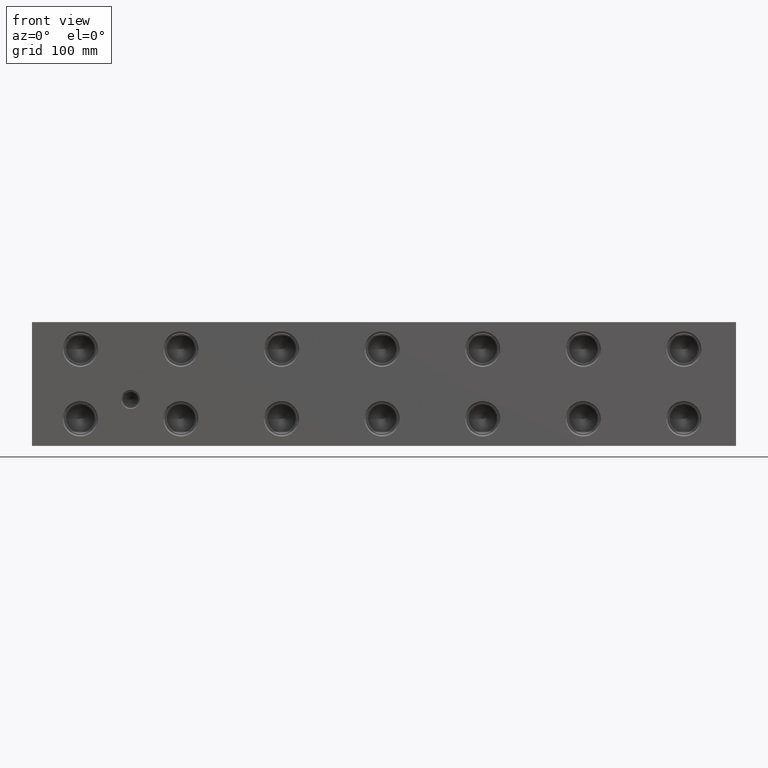
[diagram: clean part render]
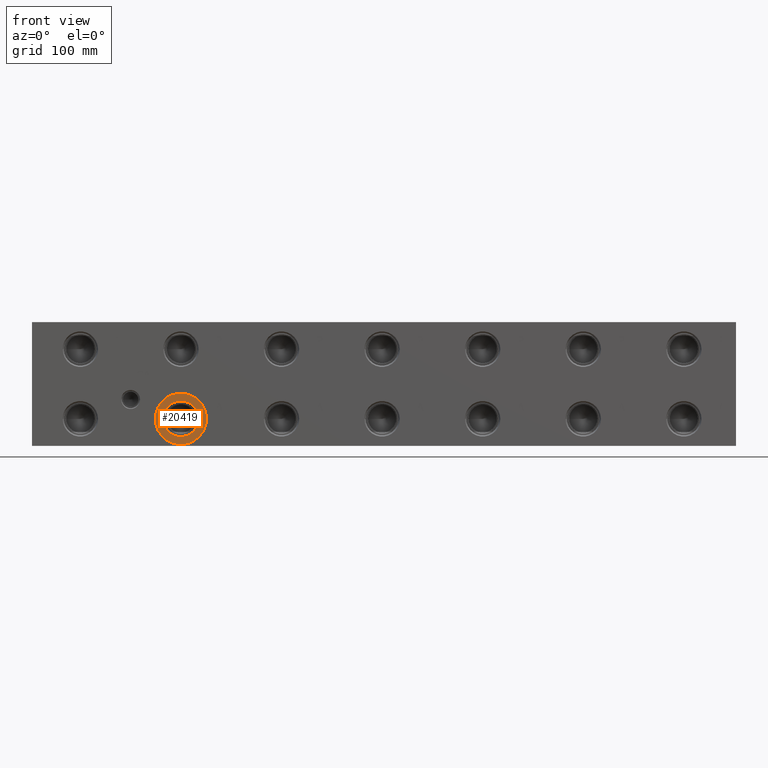
[diagram: same view with one face highlighted and labeled with its STEP entity id]
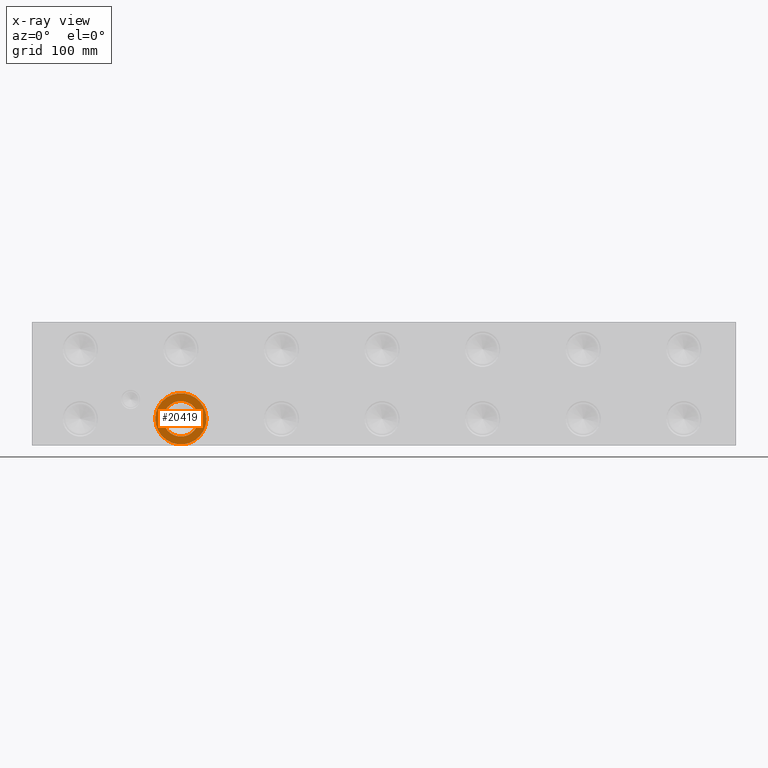
[diagram: x-ray of the same camera — body ghosted, the highlighted face saturated]
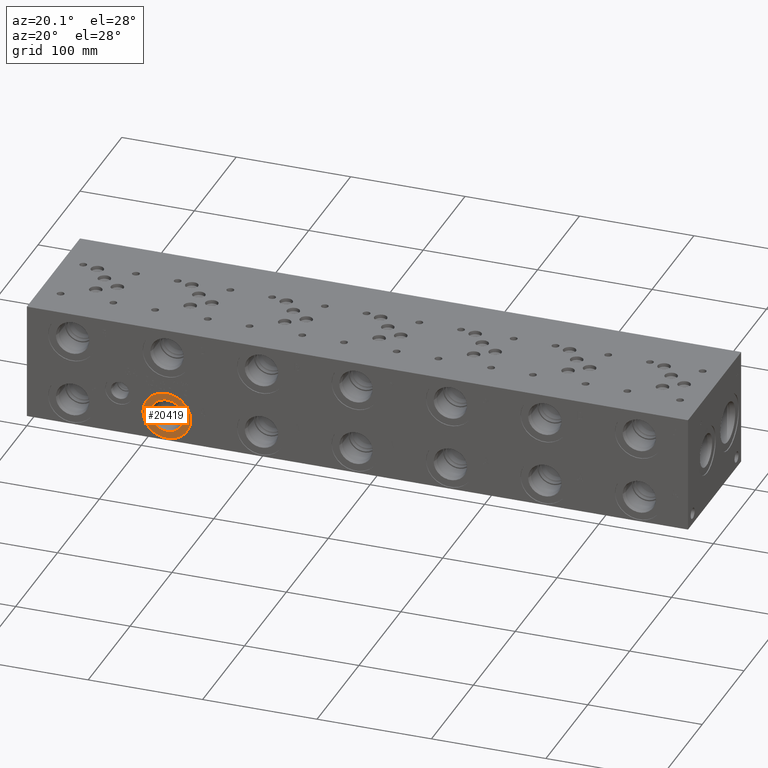
[diagram: same view with one face highlighted and labeled with its STEP entity id]
A machine part, front view. The second image highlights one B-rep face of the part: STEP entity #20419.
The next image is the same camera in x-ray: the body ghosted, the highlighted face saturated — about 0% of this face is hidden behind the body in this view.
A second angle (auxiliary view) of the same face is appended — the face is thin or edge-on in the first view.
In plain terms, the highlighted planar face has unit normal (0, 1, 0).
Its self-contained STEP definition (entity closure, byte-faithful):
#757=CIRCLE('',#21488,21.0185);
#758=CIRCLE('',#21489,21.0185);
#759=CIRCLE('',#21491,14.5923);
#760=CIRCLE('',#21492,14.5923);
#1825=FACE_BOUND('',#3909,.T.);
#2711=FACE_OUTER_BOUND('',#3908,.T.);
#3908=EDGE_LOOP('',(#16884,#16885));
#3909=EDGE_LOOP('',(#16886,#16887));
#9225=VERTEX_POINT('',#34415);
#9226=VERTEX_POINT('',#34417);
#9227=VERTEX_POINT('',#34421);
#9228=VERTEX_POINT('',#34422);
#11926=EDGE_CURVE('',#9225,#9226,#757,.T.);
#11927=EDGE_CURVE('',#9226,#9225,#758,.T.);
#11928=EDGE_CURVE('',#9227,#9228,#759,.T.);
#11929=EDGE_CURVE('',#9228,#9227,#760,.T.);
#16884=ORIENTED_EDGE('',*,*,#11927,.F.);
#16885=ORIENTED_EDGE('',*,*,#11926,.F.);
#16886=ORIENTED_EDGE('',*,*,#11928,.T.);
#16887=ORIENTED_EDGE('',*,*,#11929,.T.);
#18929=PLANE('',#21490);
#20419=ADVANCED_FACE('',(#2711,#1825),#18929,.F.);
#21488=AXIS2_PLACEMENT_3D('',#34418,#25281,#25282);
#21489=AXIS2_PLACEMENT_3D('',#34419,#25283,#25284);
#21490=AXIS2_PLACEMENT_3D('',#34420,#25285,#25286);
#21491=AXIS2_PLACEMENT_3D('',#34423,#25287,#25288);
#21492=AXIS2_PLACEMENT_3D('',#34424,#25289,#25290);
#25281=DIRECTION('center_axis',(0.,1.,0.));
#25282=DIRECTION('ref_axis',(1.,0.,0.));
#25283=DIRECTION('center_axis',(0.,1.,0.));
#25284=DIRECTION('ref_axis',(1.,0.,0.));
#25285=DIRECTION('center_axis',(0.,1.,0.));
#25286=DIRECTION('ref_axis',(0.,0.,1.));
#25287=DIRECTION('center_axis',(0.,1.,0.));
#25288=DIRECTION('ref_axis',(1.,0.,0.));
#25289=DIRECTION('center_axis',(0.,1.,0.));
#25290=DIRECTION('ref_axis',(1.,0.,0.));
#34415=CARTESIAN_POINT('',(101.2063,0.7874,22.225));
#34417=CARTESIAN_POINT('',(143.2433,0.7874,22.225));
#34418=CARTESIAN_POINT('Origin',(122.2248,0.7874,22.225));
#34419=CARTESIAN_POINT('Origin',(122.2248,0.7874,22.225));
#34420=CARTESIAN_POINT('Origin',(136.8171,0.7874,22.225));
#34421=CARTESIAN_POINT('',(136.8171,0.7874,22.225));
#34422=CARTESIAN_POINT('',(107.6325,0.7874,22.225));
#34423=CARTESIAN_POINT('Origin',(122.2248,0.7874,22.225));
#34424=CARTESIAN_POINT('Origin',(122.2248,0.7874,22.225));